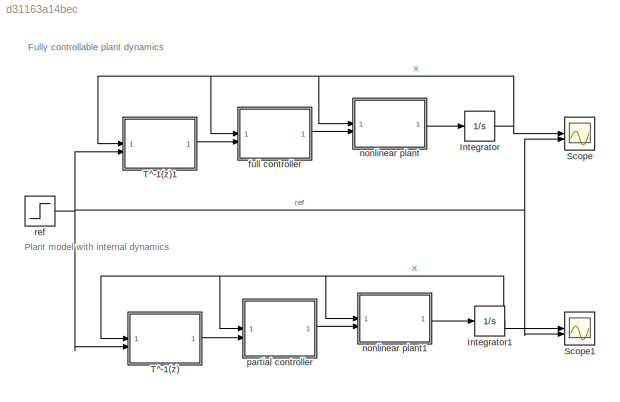
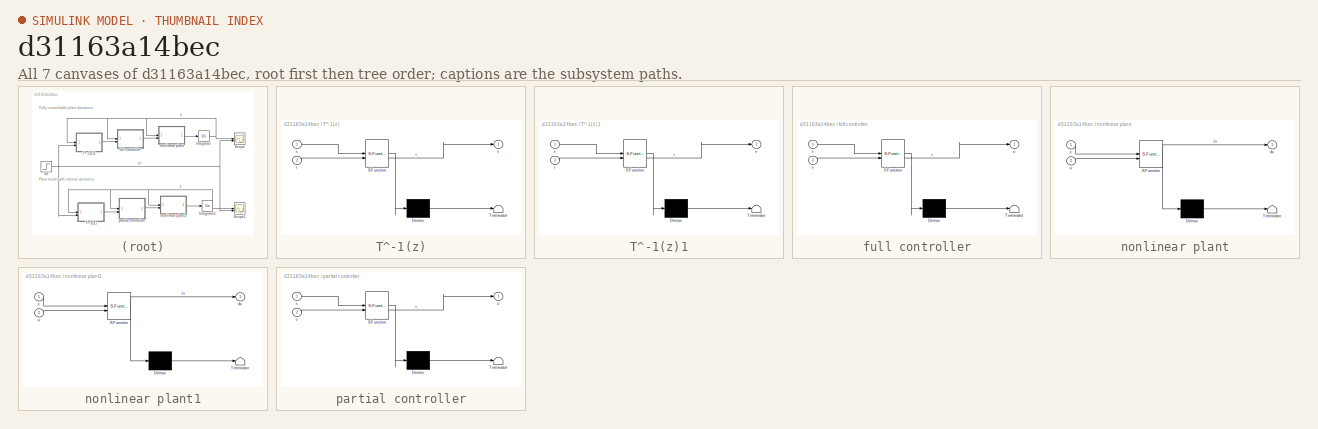
[diagram: thumbnail index - all 7 canvases of the model, root first then tree order]
MODEL slx_d31163a14bec
KIND model
CONFIG AbsTol = auto
CONFIG EnableMultiTasking = off
CONFIG FixedStep = auto
CONFIG MaxStep = auto
CONFIG MinStep = auto
CONFIG RelTol = 1e-3
CONFIG SampleTimeConstraint = Unconstrained
CONFIG SolverName = ode45
CONFIG StartTime = 0.0
CONFIG StopTime = 30
BLOCK [Integrator] Integrator
  InitialCondition = [1, 0.5, 0.4]'
  ZeroCross = off
BLOCK [Integrator] Integrator1
  InitialCondition = [.1, 0.5, 0.04]'
  ZeroCross = off
BLOCK [Scope] Scope
  Floating = off
  NumInputPorts = 2
  ScopeSpecificationString = Simulink.scopes.TimeScopeBlockCfg('CurrentConfiguration', extmgr.ConfigurationSet(extmgr.Configuration('Core','General UI',true,'FigureColor',[1 1 1]),extmgr.Configuration('Core','Source UI',true),extmgr.Configuration('Sources','WiredSimulink',true),extmgr.Configuration('Visuals','Time Domain',true,'SerializedDisplays',{struct('MinYLimReal','-2.88718','MaxYLimReal','1.88637','YLabelReal','','MinYL...<+1937ch>
BLOCK [Scope] Scope1
  Floating = off
  NumInputPorts = 2
  ScopeSpecificationString = Simulink.scopes.TimeScopeBlockCfg('CurrentConfiguration', extmgr.ConfigurationSet(extmgr.Configuration('Core','General UI',true,'FigureColor',[0.831372549019608 0.815686274509804 0.784313725490196]),extmgr.Configuration('Core','Source UI',true),extmgr.Configuration('Sources','WiredSimulink',true,'DataLoggingVariableName','ScopeData1'),extmgr.Configuration('Visuals','Time Domain',true,'SerializedDi...<+2049ch>
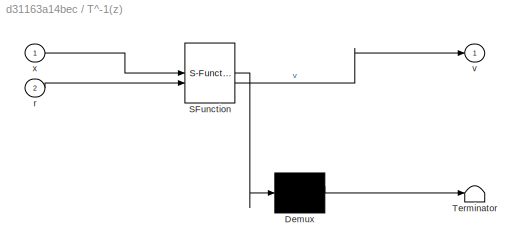
BLOCK [SubSystem] T^-1(z)
  ErrorFcn = Stateflow.Translate.translate
  PermitHierarchicalResolution = ExplicitOnly
  SFBlockType = MATLAB Function
  TreatAsAtomicUnit = on
BLOCK [Demux] T^-1(z)/ Demux 
  Outputs = 1
BLOCK [S-Function] T^-1(z)/ SFunction 
  EnableBusSupport = on
  FunctionName = sf_sfun
  Parameters = K2
  PortCounts = [2 2]
  SFcnIsStateOwnerBlock = off
  SFunctionDeploymentMode = off
  Tag = Stateflow S-Function 5
BLOCK [Terminator] T^-1(z)/ Terminator 
BLOCK [Inport] T^-1(z)/r
  Port = 2
BLOCK [Outport] T^-1(z)/v
BLOCK [Inport] T^-1(z)/x
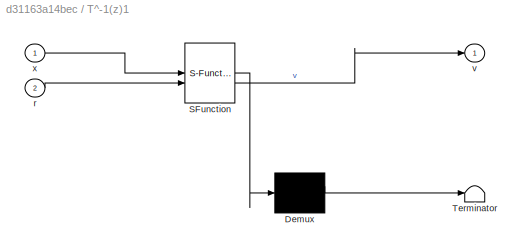
BLOCK [SubSystem] T^-1(z)1
  ErrorFcn = Stateflow.Translate.translate
  PermitHierarchicalResolution = ExplicitOnly
  SFBlockType = MATLAB Function
  TreatAsAtomicUnit = on
BLOCK [Demux] T^-1(z)1/ Demux 
  Outputs = 1
BLOCK [S-Function] T^-1(z)1/ SFunction 
  EnableBusSupport = on
  FunctionName = sf_sfun
  Parameters = K
  PortCounts = [2 2]
  SFcnIsStateOwnerBlock = off
  SFunctionDeploymentMode = off
  Tag = Stateflow S-Function 6
BLOCK [Terminator] T^-1(z)1/ Terminator 
BLOCK [Inport] T^-1(z)1/r
  Port = 2
BLOCK [Outport] T^-1(z)1/v
BLOCK [Inport] T^-1(z)1/x
BLOCK [SubSystem] full controller
  ErrorFcn = Stateflow.Translate.translate
  PermitHierarchicalResolution = ExplicitOnly
  SFBlockType = MATLAB Function
  TreatAsAtomicUnit = on
BLOCK [Demux] full controller/ Demux 
  Outputs = 1
BLOCK [S-Function] full controller/ SFunction 
  EnableBusSupport = on
  FunctionName = sf_sfun
  PortCounts = [2 2]
  SFcnIsStateOwnerBlock = off
  SFunctionDeploymentMode = off
  Tag = Stateflow S-Function 1
BLOCK [Terminator] full controller/ Terminator 
BLOCK [Outport] full controller/u
BLOCK [Inport] full controller/v
  Port = 2
BLOCK [Inport] full controller/x
BLOCK [SubSystem] nonlinear plant
  ErrorFcn = Stateflow.Translate.translate
  PermitHierarchicalResolution = ExplicitOnly
  SFBlockType = MATLAB Function
  TreatAsAtomicUnit = on
BLOCK [Demux] nonlinear plant/ Demux 
  Outputs = 1
BLOCK [S-Function] nonlinear plant/ SFunction 
  EnableBusSupport = on
  FunctionName = sf_sfun
  PortCounts = [2 2]
  SFcnIsStateOwnerBlock = off
  SFunctionDeploymentMode = off
  Tag = Stateflow S-Function 2
BLOCK [Terminator] nonlinear plant/ Terminator 
BLOCK [Outport] nonlinear plant/dx
BLOCK [Inport] nonlinear plant/u
  Port = 2
BLOCK [Inport] nonlinear plant/x
BLOCK [SubSystem] nonlinear plant1
  ErrorFcn = Stateflow.Translate.translate
  PermitHierarchicalResolution = ExplicitOnly
  SFBlockType = MATLAB Function
  TreatAsAtomicUnit = on
BLOCK [Demux] nonlinear plant1/ Demux 
  Outputs = 1
BLOCK [S-Function] nonlinear plant1/ SFunction 
  EnableBusSupport = on
  FunctionName = sf_sfun
  PortCounts = [2 2]
  SFcnIsStateOwnerBlock = off
  SFunctionDeploymentMode = off
  Tag = Stateflow S-Function 4
BLOCK [Terminator] nonlinear plant1/ Terminator 
BLOCK [Outport] nonlinear plant1/dx
BLOCK [Inport] nonlinear plant1/u
  Port = 2
BLOCK [Inport] nonlinear plant1/x
BLOCK [SubSystem] partial controller
  ErrorFcn = Stateflow.Translate.translate
  PermitHierarchicalResolution = ExplicitOnly
  SFBlockType = MATLAB Function
  TreatAsAtomicUnit = on
BLOCK [Demux] partial controller/ Demux 
  Outputs = 1
BLOCK [S-Function] partial controller/ SFunction 
  EnableBusSupport = on
  FunctionName = sf_sfun
  PortCounts = [2 2]
  SFcnIsStateOwnerBlock = off
  SFunctionDeploymentMode = off
  Tag = Stateflow S-Function 3
BLOCK [Terminator] partial controller/ Terminator 
BLOCK [Outport] partial controller/u
BLOCK [Inport] partial controller/v
  Port = 2
BLOCK [Inport] partial controller/x
BLOCK [Step] ref
  After = 2
  Before = 1
  SampleTime = 0
  Time = 10
ANNOTATION (root): Fully controllable plant dynamics
ANNOTATION (root): Plant model with internal dynamics
NET Integrator1:1 -> Scope1:1, T^-1(z):1, nonlinear plant1:1, partial controller:1
NET Integrator:1 -> Scope:1, T^-1(z)1:1, full controller:1, nonlinear plant:1
LINE T^-1(z)1:1 -> full controller:2
LINE T^-1(z):1 -> partial controller:2
LINE full controller:1 -> nonlinear plant:2
LINE nonlinear plant1:1 -> Integrator1:1
LINE nonlinear plant:1 -> Integrator:1
LINE partial controller:1 -> nonlinear plant1:2
NET ref:1 -> Scope1:2, Scope:2, T^-1(z)1:2, T^-1(z):2
note: NET lines group one-source signal fan-out (src -> all destinations, sorted); 1:1 wires keep LINE
CHART full controller states=1 transitions=1
  STATE_LABEL 'eML_blk_kernel()'
  STATE_LABEL 'SCRIPT:\nfunction u = controller(x,v)\na = 1; k = 0.4; m = 2;\nu = (v + a*x(3)*x(2)/(m*x(1)) + k*x(2)/m)*(m*x(1))/(x(3));\n\n\n'
CHART nonlinear plant states=1 transitions=1
  STATE_LABEL 'eML_blk_kernel()'
  STATE_LABEL 'SCRIPT:\nfunction dx = plant(x,u)\ndx = zeros(3,1);\na = 1; k = 0.4; m = 2;\ndx(1) = x(2);\ndx(2) = (a*x(3)-k*x(1))/m;\ndx(3) = -(x(3)/x(1))*(x(2)-u/a);'
CHART partial controller states=1 transitions=1
  STATE_LABEL 'eML_blk_kernel()'
  STATE_LABEL 'SCRIPT:\nfunction u = control(x, v)\na = 1; k = 0.4; m = 2; %K = 2;\n\nu = (m*x(1)/x(3))*(v + a*x(3)*x(2)/(m*x(1))+k*x(2)/m);'
CHART nonlinear plant1 states=1 transitions=1
  STATE_LABEL 'eML_blk_kernel()'
  STATE_LABEL 'SCRIPT:\nfunction dx = plant(x,u)\ndx = zeros(3,1);\na = 1; k = 0.4; m = 2;\ndx(1) = x(2);\ndx(2) = (a*x(3)-k*x(1))/m;\ndx(3) = -(x(3)/x(1))*(x(2)-u/a);'
CHART T^-1(z) states=1 transitions=1
  STATE_LABEL 'eML_blk_kernel()'
  STATE_LABEL 'SCRIPT:\nfunction v = transform(x, r, K2)\na = 1; m = 2; k = 0.4;\nz1 = x(2);\nz2 = (a*x(3)-k*x(1))/m;\nv = K2(1)*(r-z1)-K2(2)*z2;\n'
CHART T^-1(z)1 states=1 transitions=1
  STATE_LABEL 'eML_blk_kernel()'
  STATE_LABEL 'SCRIPT:\nfunction v = transformation(x, r, K)\na = 1; m = 2; k = 0.4;\nz1 = x(1);\nz2 = x(2);\nz3 = (a*x(3)-k*x(1))/m;\nv = K(1)*(r-z1)-K(2)*z2 - K(3)*z3;\n'
CHART  states=0 transitions=0
CHART  states=0 transitions=0
CHART  states=0 transitions=0
CHART  states=0 transitions=0
CHART  states=0 transitions=0
CHART  states=0 transitions=0
